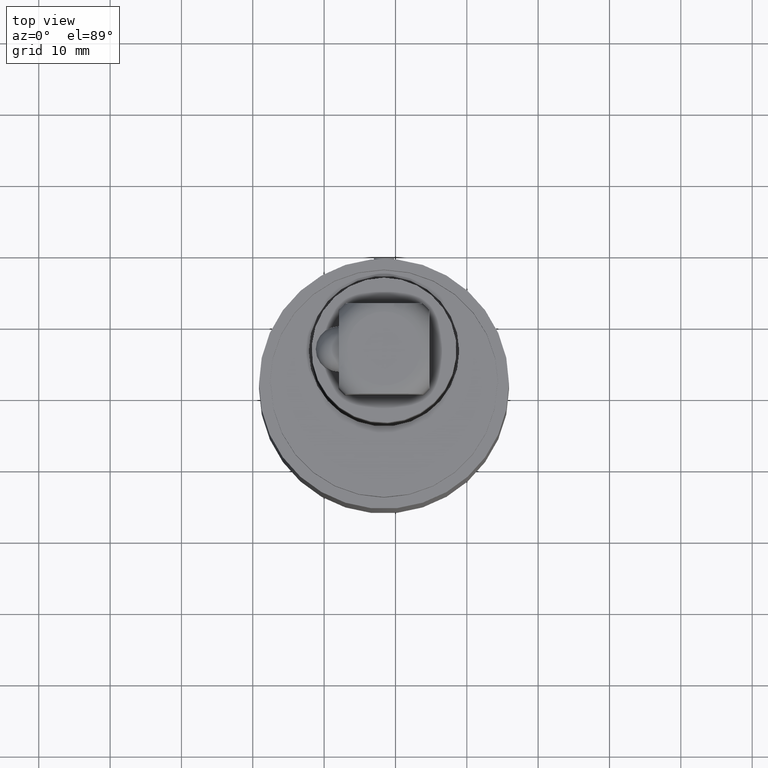
[diagram: clean part render]
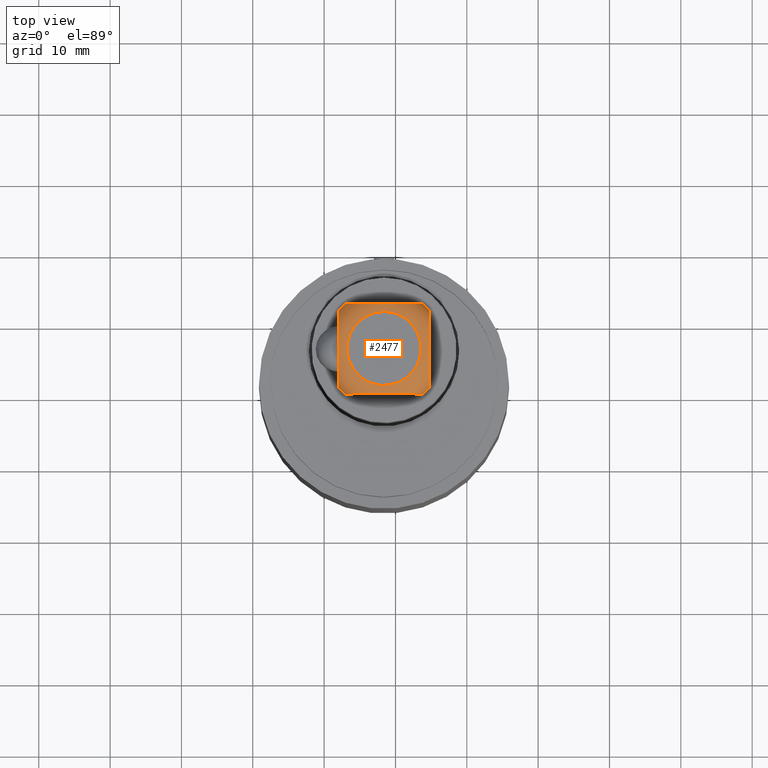
[diagram: same view with one face highlighted and labeled with its STEP entity id]
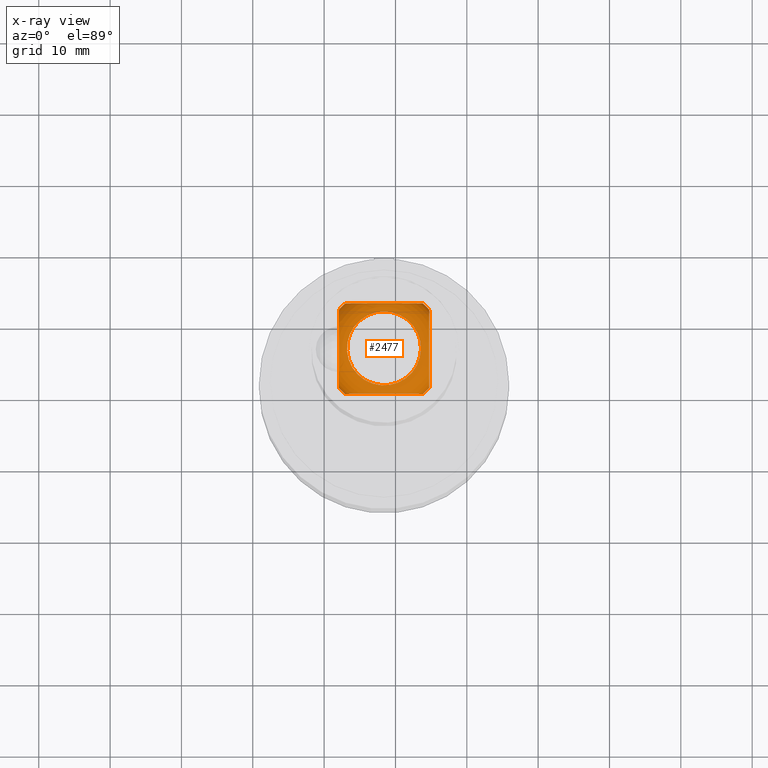
[diagram: x-ray of the same camera — body ghosted, the highlighted face saturated]
A machine part, top view. The second image highlights one B-rep face of the part: STEP entity #2477.
The next image is the same camera in x-ray: the body ghosted, the highlighted face saturated — about 0% of this face is hidden behind the body in this view.
In plain terms, the highlighted toroidal blend (fillet) surface has major radius 5.1816 mm and minor (blend) radius 3.175 mm.
Its self-contained STEP definition (entity closure, byte-faithful):
#2262=CARTESIAN_POINT('',(7.596863566301636,4.018497579026912,1.562431806677398));
#2263=VERTEX_POINT('',#2262);
#2270=CARTESIAN_POINT('',(8.024606479743810,4.018497579026912,1.562431806677398));
#2271=VERTEX_POINT('',#2270);
#2272=CARTESIAN_POINT('',(8.024606479743810,4.018497579026912,1.562431806677398));
#2273=CARTESIAN_POINT('',(8.024606479743810,4.018497579026912,1.572304563965431));
#2274=CARTESIAN_POINT('',(8.022312364864153,4.018497579026912,1.583927634189492));
#2275=CARTESIAN_POINT('',(8.014509755334093,4.018497579026912,1.603638031312366));
#2276=CARTESIAN_POINT('',(8.007050115319711,4.018497579026912,1.614998895084245));
#2277=CARTESIAN_POINT('',(7.988806266859959,4.018497579026912,1.634703993599155));
#2278=CARTESIAN_POINT('',(7.973501711563637,4.018497579026912,1.645333285925138));
#2279=CARTESIAN_POINT('',(7.916442772472331,4.018497579026912,1.673602330898902));
#2280=CARTESIAN_POINT('',(7.858884812005140,4.018497579026912,1.678660030444261));
#2281=CARTESIAN_POINT('',(7.762585234040306,4.018497579026912,1.678660030444261));
#2282=CARTESIAN_POINT('',(7.705027273573116,4.018497579026912,1.673602330898902));
#2283=CARTESIAN_POINT('',(7.647968334481807,4.018497579026912,1.645333285925138));
#2284=CARTESIAN_POINT('',(7.632663779185487,4.018497579026912,1.634703993599155));
#2285=CARTESIAN_POINT('',(7.614419930725734,4.018497579026912,1.614998895084245));
#2286=CARTESIAN_POINT('',(7.606960290711352,4.018497579026912,1.603638031312366));
#2287=CARTESIAN_POINT('',(7.599157681181292,4.018497579026912,1.583927634189492));
#2288=CARTESIAN_POINT('',(7.596863566301636,4.018497579026912,1.572304563965431));
#2289=CARTESIAN_POINT('',(7.596863566301636,4.018497579026912,1.562431806677398));
#2290=B_SPLINE_CURVE_WITH_KNOTS('',3,(#2272,#2273,#2274,#2275,#2276,#2277,#2278,#2279,#2280,#2281,#2282,#2283,#2284,#2285,#2286,#2287,#2288,#2289),.UNSPECIFIED.,.F.,.U.,(4,2,2,2,2,2,2,2,4),(0.646758090530697,0.721988501065512,0.808291391664055,0.926614789015376,1.293516181061392,1.660417573107408,1.778740970458730,1.865043861057272,1.940274271592087),.UNSPECIFIED.);
#2291=EDGE_CURVE('',#2271,#2263,#2290,.T.);
#2307=CARTESIAN_POINT('',(7.560735023022723,3.554626122305825,1.562431806677398));
#2308=VERTEX_POINT('',#2307);
#2317=CARTESIAN_POINT('',(7.560735023022723,3.982369035748000,1.562431806677398));
#2318=VERTEX_POINT('',#2317);
#2319=CARTESIAN_POINT('',(7.560735023022723,3.982369035748000,1.562431806677398));
#2320=CARTESIAN_POINT('',(7.560735023022723,3.982369035748000,1.572304563965431));
#2321=CARTESIAN_POINT('',(7.560735023022723,3.980074920868343,1.583927634189492));
#2322=CARTESIAN_POINT('',(7.560735023022723,3.972272311338283,1.603638031312366));
#2323=CARTESIAN_POINT('',(7.560735023022723,3.964812671323901,1.614998895084245));
#2324=CARTESIAN_POINT('',(7.560735023022723,3.946568822864149,1.634703993599155));
#2325=CARTESIAN_POINT('',(7.560735023022723,3.931264267567827,1.645333285925138));
#2326=CARTESIAN_POINT('',(7.560735023022723,3.874205328476520,1.673602330898902));
#2327=CARTESIAN_POINT('',(7.560735023022723,3.816647368009329,1.678660030444261));
#2328=CARTESIAN_POINT('',(7.560735023022723,3.720347790044496,1.678660030444261));
#2329=CARTESIAN_POINT('',(7.560735023022723,3.662789829577305,1.673602330898902));
#2330=CARTESIAN_POINT('',(7.560735023022723,3.605730890485997,1.645333285925138));
#2331=CARTESIAN_POINT('',(7.560735023022723,3.590426335189676,1.634703993599155));
#2332=CARTESIAN_POINT('',(7.560735023022723,3.572182486729924,1.614998895084245));
#2333=CARTESIAN_POINT('',(7.560735023022723,3.564722846715542,1.603638031312366));
#2334=CARTESIAN_POINT('',(7.560735023022723,3.556920237185482,1.583927634189492));
#2335=CARTESIAN_POINT('',(7.560735023022723,3.554626122305825,1.572304563965431));
#2336=CARTESIAN_POINT('',(7.560735023022723,3.554626122305825,1.562431806677398));
#2337=B_SPLINE_CURVE_WITH_KNOTS('',3,(#2319,#2320,#2321,#2322,#2323,#2324,#2325,#2326,#2327,#2328,#2329,#2330,#2331,#2332,#2333,#2334,#2335,#2336),.UNSPECIFIED.,.F.,.U.,(4,2,2,2,2,2,2,2,4),(0.646758090530697,0.721988501065512,0.808291391664055,0.926614789015376,1.293516181061392,1.660417573107408,1.778740970458729,1.865043861057272,1.940274271592087),.UNSPECIFIED.);
#2338=EDGE_CURVE('',#2318,#2308,#2337,.T.);
#2366=CARTESIAN_POINT('',(7.810735023022723,3.768497579026912,1.562431806677397));
#2367=DIRECTION('',(0.0,0.0,1.0));
#2368=DIRECTION('',(0.0,-1.0,0.0));
#2369=AXIS2_PLACEMENT_3D('',#2366,#2367,#2368);
#2370=CIRCLE('',#2369,0.329000000000000);
#2371=EDGE_CURVE('',#2263,#2318,#2370,.T.);
#2385=CARTESIAN_POINT('',(7.810735023022723,3.768497579026912,1.562431806677397));
#2386=DIRECTION('',(-1.872135E-016,4.837723E-017,1.0));
#2387=DIRECTION('',(1.0,0.0,0.0));
#2388=AXIS2_PLACEMENT_3D('',#2385,#2386,#2387);
#2389=TOROIDAL_SURFACE('',#2388,0.204000000000000,0.125000000000000);
#2390=CARTESIAN_POINT('',(7.810735023022723,3.972497579026912,1.687431806677397));
#2391=VERTEX_POINT('',#2390);
#2392=CARTESIAN_POINT('',(7.810735023022723,3.768497579026912,1.687431806677397));
#2393=DIRECTION('',(0.0,0.0,-1.0));
#2394=DIRECTION('',(0.0,-1.0,0.0));
#2395=AXIS2_PLACEMENT_3D('',#2392,#2393,#2394);
#2396=CIRCLE('',#2395,0.204000000000000);
#2397=EDGE_CURVE('',#2391,#2391,#2396,.T.);
#2398=ORIENTED_EDGE('',*,*,#2397,.T.);
#2399=EDGE_LOOP('',(#2398));
#2400=FACE_OUTER_BOUND('',#2399,.T.);
#2401=ORIENTED_EDGE('',*,*,#2338,.T.);
#2402=CARTESIAN_POINT('',(7.596863566301634,3.518497579026912,1.562431806677398));
#2403=VERTEX_POINT('',#2402);
#2404=CARTESIAN_POINT('',(7.810735023022723,3.768497579026912,1.562431806677397));
#2405=DIRECTION('',(0.0,0.0,1.0));
#2406=DIRECTION('',(0.0,-1.0,0.0));
#2407=AXIS2_PLACEMENT_3D('',#2404,#2405,#2406);
#2408=CIRCLE('',#2407,0.329000000000000);
#2409=EDGE_CURVE('',#2308,#2403,#2408,.T.);
#2410=ORIENTED_EDGE('',*,*,#2409,.T.);
#2411=CARTESIAN_POINT('',(8.024606479743810,3.518497579026912,1.562431806677398));
#2412=VERTEX_POINT('',#2411);
#2413=CARTESIAN_POINT('',(7.596863566301636,3.518497579026912,1.562431806677398));
#2414=CARTESIAN_POINT('',(7.596863566301636,3.518497579026912,1.572304563965431));
#2415=CARTESIAN_POINT('',(7.599157681181292,3.518497579026912,1.583927634189492));
#2416=CARTESIAN_POINT('',(7.606960290711352,3.518497579026912,1.603638031312366));
#2417=CARTESIAN_POINT('',(7.614419930725734,3.518497579026912,1.614998895084245));
#2418=CARTESIAN_POINT('',(7.632663779185487,3.518497579026912,1.634703993599155));
#2419=CARTESIAN_POINT('',(7.647968334481807,3.518497579026912,1.645333285925138));
#2420=CARTESIAN_POINT('',(7.705027273573116,3.518497579026912,1.673602330898902));
#2421=CARTESIAN_POINT('',(7.762585234040306,3.518497579026912,1.678660030444261));
#2422=CARTESIAN_POINT('',(7.858884812005140,3.518497579026912,1.678660030444261));
#2423=CARTESIAN_POINT('',(7.916442772472331,3.518497579026912,1.673602330898902));
#2424=CARTESIAN_POINT('',(7.973501711563637,3.518497579026912,1.645333285925138));
#2425=CARTESIAN_POINT('',(7.988806266859959,3.518497579026912,1.634703993599155));
#2426=CARTESIAN_POINT('',(8.007050115319711,3.518497579026912,1.614998895084245));
#2427=CARTESIAN_POINT('',(8.014509755334093,3.518497579026912,1.603638031312366));
#2428=CARTESIAN_POINT('',(8.022312364864153,3.518497579026912,1.583927634189492));
#2429=CARTESIAN_POINT('',(8.024606479743810,3.518497579026912,1.572304563965431));
#2430=CARTESIAN_POINT('',(8.024606479743810,3.518497579026912,1.562431806677398));
#2431=B_SPLINE_CURVE_WITH_KNOTS('',3,(#2413,#2414,#2415,#2416,#2417,#2418,#2419,#2420,#2421,#2422,#2423,#2424,#2425,#2426,#2427,#2428,#2429,#2430),.UNSPECIFIED.,.F.,.U.,(4,2,2,2,2,2,2,2,4),(0.646758090530697,0.721988501065512,0.808291391664055,0.926614789015376,1.293516181061392,1.660417573107408,1.778740970458730,1.865043861057272,1.940274271592087),.UNSPECIFIED.);
#2432=EDGE_CURVE('',#2403,#2412,#2431,.T.);
#2433=ORIENTED_EDGE('',*,*,#2432,.T.);
#2434=CARTESIAN_POINT('',(8.060735023022723,3.554626122305825,1.562431806677398));
#2435=VERTEX_POINT('',#2434);
#2436=CARTESIAN_POINT('',(7.810735023022723,3.768497579026912,1.562431806677397));
#2437=DIRECTION('',(0.0,0.0,1.0));
#2438=DIRECTION('',(0.0,-1.0,0.0));
#2439=AXIS2_PLACEMENT_3D('',#2436,#2437,#2438);
#2440=CIRCLE('',#2439,0.329000000000000);
#2441=EDGE_CURVE('',#2412,#2435,#2440,.T.);
#2442=ORIENTED_EDGE('',*,*,#2441,.T.);
#2443=CARTESIAN_POINT('',(8.060735023022723,3.982369035748000,1.562431806677398));
#2444=VERTEX_POINT('',#2443);
#2445=CARTESIAN_POINT('',(8.060735023022723,3.554626122305824,1.562431806677398));
#2446=CARTESIAN_POINT('',(8.060735023022723,3.554626122305824,1.572304563965431));
#2447=CARTESIAN_POINT('',(8.060735023022723,3.556920237185482,1.583927634189492));
#2448=CARTESIAN_POINT('',(8.060735023022723,3.564722846715542,1.603638031312366));
#2449=CARTESIAN_POINT('',(8.060735023022723,3.572182486729924,1.614998895084245));
#2450=CARTESIAN_POINT('',(8.060735023022723,3.590426335189676,1.634703993599155));
#2451=CARTESIAN_POINT('',(8.060735023022723,3.605730890485997,1.645333285925138));
#2452=CARTESIAN_POINT('',(8.060735023022723,3.662789829577305,1.673602330898902));
#2453=CARTESIAN_POINT('',(8.060735023022723,3.720347790044496,1.678660030444261));
#2454=CARTESIAN_POINT('',(8.060735023022723,3.816647368009329,1.678660030444261));
#2455=CARTESIAN_POINT('',(8.060735023022723,3.874205328476520,1.673602330898902));
#2456=CARTESIAN_POINT('',(8.060735023022723,3.931264267567827,1.645333285925138));
#2457=CARTESIAN_POINT('',(8.060735023022723,3.946568822864149,1.634703993599155));
#2458=CARTESIAN_POINT('',(8.060735023022723,3.964812671323901,1.614998895084245));
#2459=CARTESIAN_POINT('',(8.060735023022723,3.972272311338283,1.603638031312366));
#2460=CARTESIAN_POINT('',(8.060735023022723,3.980074920868343,1.583927634189492));
#2461=CARTESIAN_POINT('',(8.060735023022723,3.982369035748001,1.572304563965431));
#2462=CARTESIAN_POINT('',(8.060735023022723,3.982369035748001,1.562431806677398));
#2463=B_SPLINE_CURVE_WITH_KNOTS('',3,(#2445,#2446,#2447,#2448,#2449,#2450,#2451,#2452,#2453,#2454,#2455,#2456,#2457,#2458,#2459,#2460,#2461,#2462),.UNSPECIFIED.,.F.,.U.,(4,2,2,2,2,2,2,2,4),(0.646758090530697,0.721988501065512,0.808291391664055,0.926614789015376,1.293516181061392,1.660417573107408,1.778740970458729,1.865043861057272,1.940274271592087),.UNSPECIFIED.);
#2464=EDGE_CURVE('',#2435,#2444,#2463,.T.);
#2465=ORIENTED_EDGE('',*,*,#2464,.T.);
#2466=CARTESIAN_POINT('',(7.810735023022723,3.768497579026912,1.562431806677397));
#2467=DIRECTION('',(0.0,0.0,1.0));
#2468=DIRECTION('',(0.0,-1.0,0.0));
#2469=AXIS2_PLACEMENT_3D('',#2466,#2467,#2468);
#2470=CIRCLE('',#2469,0.329000000000000);
#2471=EDGE_CURVE('',#2444,#2271,#2470,.T.);
#2472=ORIENTED_EDGE('',*,*,#2471,.T.);
#2473=ORIENTED_EDGE('',*,*,#2291,.T.);
#2474=ORIENTED_EDGE('',*,*,#2371,.T.);
#2475=EDGE_LOOP('',(#2401,#2410,#2433,#2442,#2465,#2472,#2473,#2474));
#2476=FACE_BOUND('',#2475,.T.);
#2477=ADVANCED_FACE('',(#2400,#2476),#2389,.T.);